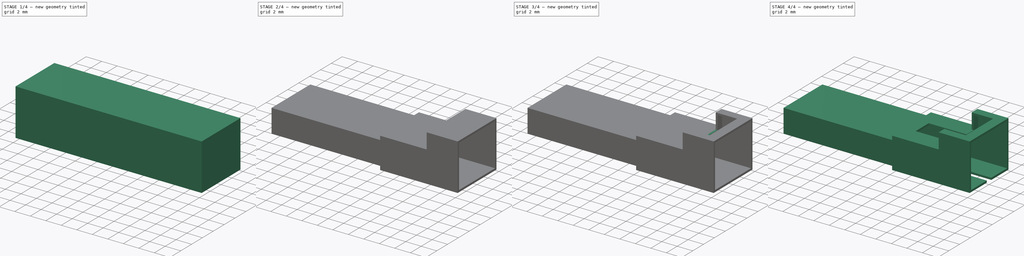
[diagram: build sequence overview — one tinted view per stage of 4, left to right]
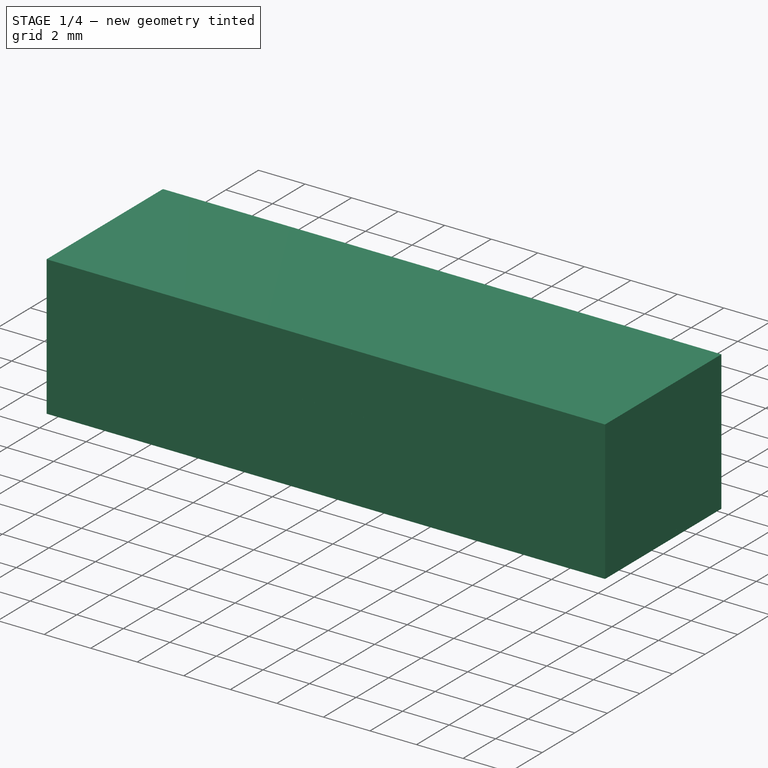
[diagram: stage 1 of 4 — iso view after this stage's code; geometry added in this stage tinted green]
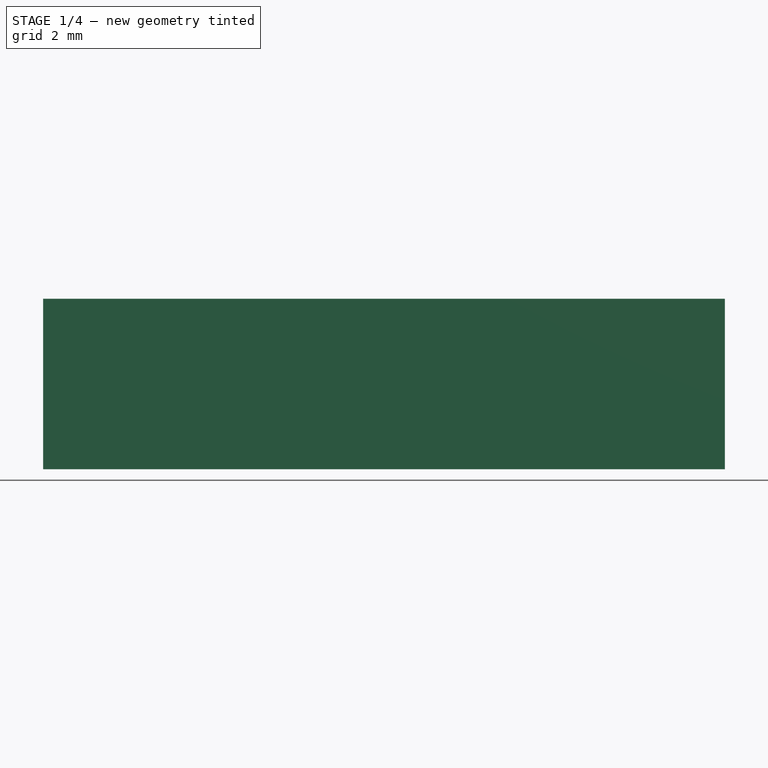
[diagram: stage 1 of 4 — front view after this stage's code; geometry added in this stage tinted green]
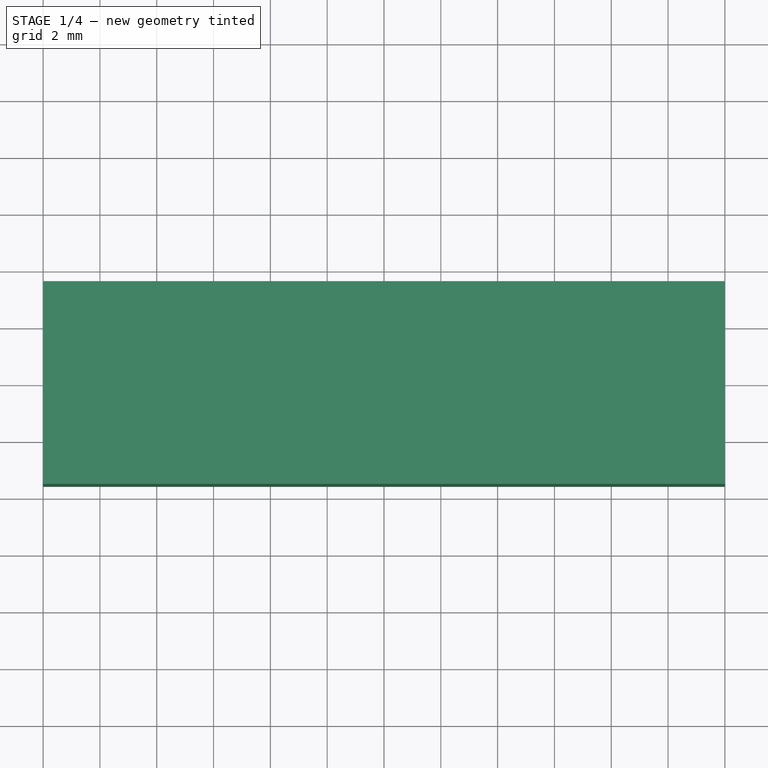
[diagram: stage 1 of 4 — top view after this stage's code; geometry added in this stage tinted green]
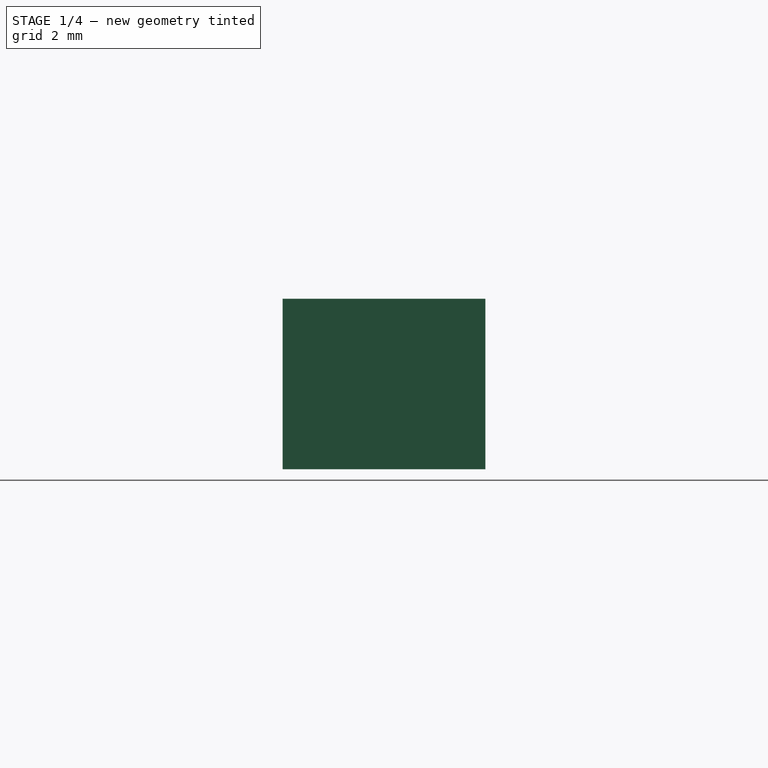
[diagram: stage 1 of 4 — right view after this stage's code; geometry added in this stage tinted green]
FCSTD DOCUMENT  (FreeCAD 0.17R13662 (Git))
Label: molex_2pos_male
License: All rights reserved
LicenseURL: http://en.wikipedia.org/wiki/All_rights_reserved
objects: Sketcher::SketchObject×9, PartDesign::Pocket×7, PartDesign::Pad×2, PartDesign::Body×2, PartDesign::Thickness×1, Part::Feature×1, PartDesign::FeatureBase×1
note: 32 computed .brp shape members not serialized (recipe doc carries the construction recipe); baked Part::Feature solids carry a one-line shape summary decoded from their .brp

FEATURE [Sketcher::SketchObject] Sketch
  MapMode = 5
  Support = -> [XY_Plane]
  sketch-geometry (4):
    g0: LineSegment StartX=-12 StartY=3.57 StartZ=0 EndX=12 EndY=3.57 EndZ=0
    g1: LineSegment StartX=12 StartY=3.57 StartZ=0 EndX=12 EndY=-3.57 EndZ=0
    g2: LineSegment StartX=12 StartY=-3.57 StartZ=0 EndX=-12 EndY=-3.57 EndZ=0
    g3: LineSegment StartX=-12 StartY=-3.57 StartZ=0 EndX=-12 EndY=3.57 EndZ=0
  constraints (12):
    c: Coincident(g0,g1)
    c: Coincident(g1,g2)
    c: Coincident(g2,g3)
    c: Coincident(g3,g0)
    c: Horizontal(g0)
    c: Horizontal(g2)
    c: Vertical(g1)
    c: Vertical(g3)
    c: Symmetric(g0,g2,g-1)
    c: Symmetric(g0,g0,g-2)
    c: Distance(g1) = 7.14
    c: Distance(g0) = 24
FEATURE [PartDesign::Pad] Pad
  Length = 6
  Length2 = 100
  Profile = -> Sketch
  Type = 0
FEATURE [PartDesign::Body] Body
  Group = -> [Sketch,Pad,Sketch001,Pocket,Sketch002,Pocket001,Thickness,Sketch003,Pocket002,Sketch004,Pocket003,Sketch005,Pocket004,Sketch006,Pocket005,Sketch007,Pad001]
  Origin = -> Origin
  Tip = -> Pad001
FEATURE [Part::Feature] Pad001001  label="Pad002"
  shape: bbox 24 x 7.142 x 6.002 mm, 50 faces (baked)
FEATURE [PartDesign::FeatureBase] BaseFeature
  BaseFeature = -> Pad001001
FEATURE [Sketcher::SketchObject] Sketch008
  MapMode = 5
  Placement = pos=(0,0,3.5) rot=(0,0,1;0rad)
  Support = -> [BaseFeature]
  sketch-geometry (16):
    g0: LineSegment StartX=-11.212 StartY=1.58188 StartZ=0 EndX=-9.9706 EndY=1.58188 EndZ=0
    g1: LineSegment StartX=-9.9706 StartY=1.58188 StartZ=0 EndX=-9.9706 EndY=0.792042 EndZ=0
    g2: LineSegment StartX=-9.9706 StartY=0.792042 StartZ=0 EndX=-11.212 EndY=0.792042 EndZ=0
    g3: LineSegment StartX=-11.212 StartY=0.792042 StartZ=0 EndX=-11.212 EndY=1.58188 EndZ=0
    g4: LineSegment StartX=-4.32571 StartY=1.58188 StartZ=0 EndX=-3.08434 EndY=1.58188 EndZ=0
    g5: LineSegment StartX=-3.08434 StartY=1.58188 StartZ=0 EndX=-3.08434 EndY=0.792042 EndZ=0
    g6: LineSegment StartX=-3.08434 StartY=0.792042 StartZ=0 EndX=-4.32571 EndY=0.792042 EndZ=0
    g7: LineSegment StartX=-4.32571 StartY=0.792042 StartZ=0 EndX=-4.32571 EndY=1.58188 EndZ=0
    g8: LineSegment StartX=-11.212 StartY=-1.58188 StartZ=0 EndX=-9.9706 EndY=-1.58188 EndZ=0
    g9: LineSegment StartX=-9.9706 StartY=-1.58188 StartZ=0 EndX=-9.9706 EndY=-0.792042 EndZ=0
    g10: LineSegment StartX=-9.9706 StartY=-0.792042 StartZ=0 EndX=-11.212 EndY=-0.792042 EndZ=0
    g11: LineSegment StartX=-11.212 StartY=-0.792042 StartZ=0 EndX=-11.212 EndY=-1.58188 EndZ=0
    g12: LineSegment StartX=-4.32571 StartY=-1.58188 StartZ=0 EndX=-3.08434 EndY=-1.58188 EndZ=0
    g13: LineSegment StartX=-3.08434 StartY=-1.58188 StartZ=0 EndX=-3.08434 EndY=-0.792042 EndZ=0
    g14: LineSegment StartX=-3.08434 StartY=-0.792042 StartZ=0 EndX=-4.32571 EndY=-0.792042 EndZ=0
    g15: LineSegment StartX=-4.32571 StartY=-0.792042 StartZ=0 EndX=-4.32571 EndY=-1.58188 EndZ=0
  constraints (37):
    c: Coincident(g0,g1)
    c: Coincident(g1,g2)
    c: Coincident(g2,g3)
    c: Coincident(g3,g0)
    c: Horizontal(g0)
    c: Horizontal(g2)
    c: Vertical(g1)
    c: Vertical(g3)
    c: Coincident(g4,g5)
    c: Coincident(g5,g6)
    c: Coincident(g6,g7)
    c: Coincident(g7,g4)
    c: Horizontal(g4)
    c: Horizontal(g6)
    c: Vertical(g5)
    c: Vertical(g7)
    c: DistanceY(g6,g1) = 0
    c: Equal(g7,g1)
    c: Equal(g4,g0)
    c: Coincident(g8,g9)
    c: Coincident(g9,g10)
    c: Coincident(g10,g11)
    c: Coincident(g11,g8)
    c: Horizontal(g8)
    c: Horizontal(g10)
    c: Vertical(g9)
    c: Vertical(g11)
    c: Coincident(g12,g13)
    c: Coincident(g13,g14)
    c: Coincident(g14,g15)
    c: Coincident(g15,g12)
    c: Horizontal(g12)
    c: Horizontal(g14)
    c: Vertical(g13)
    c: Vertical(g15)
    c: Equal(g15,g9)
    c: Equal(g12,g8)
FEATURE [PartDesign::Pocket] Pocket006
  BaseFeature = -> BaseFeature
  Length = 1
  Length2 = 100
  Profile = -> Sketch008
  Type = 0
FEATURE [PartDesign::Body] Body001
  BaseFeature = -> Pad001001
  Group = -> [BaseFeature,Sketch008,Pocket006]
  Origin = -> Origin001
  Tip = -> Pocket006
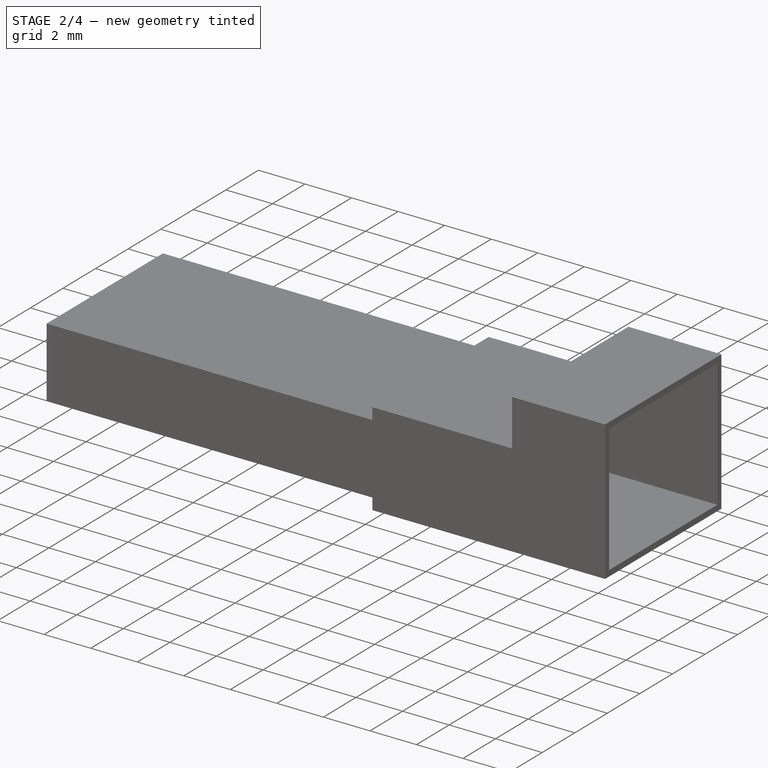
[diagram: stage 2 of 4 — iso view after this stage's code; geometry added in this stage tinted green]
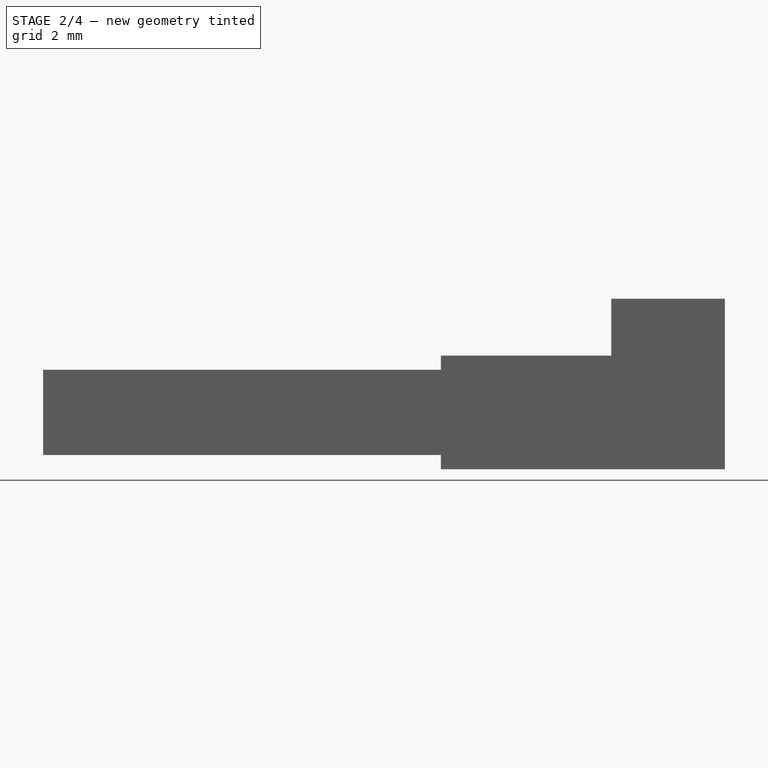
[diagram: stage 2 of 4 — front view after this stage's code; geometry added in this stage tinted green]
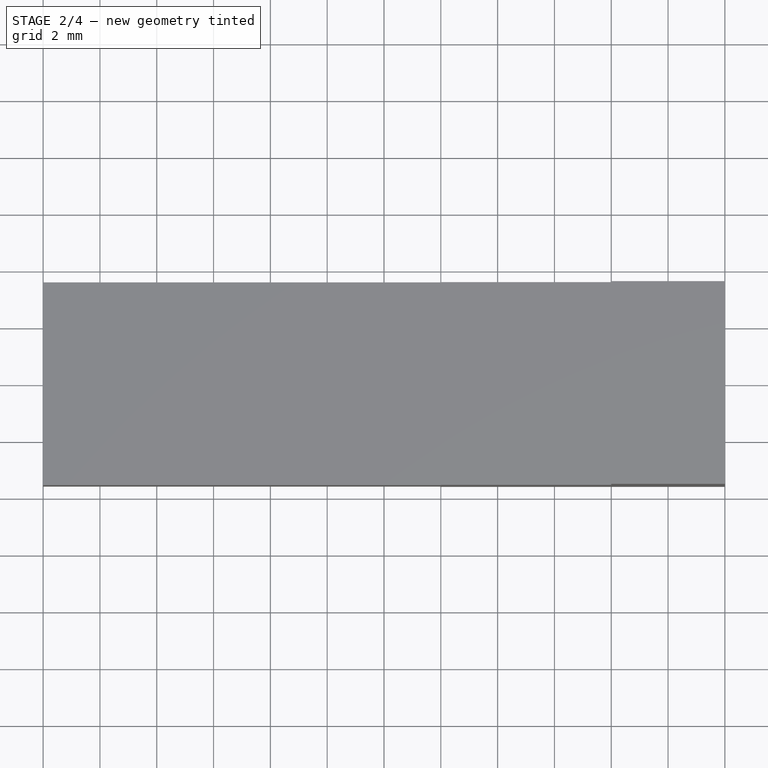
[diagram: stage 2 of 4 — top view after this stage's code; geometry added in this stage tinted green]
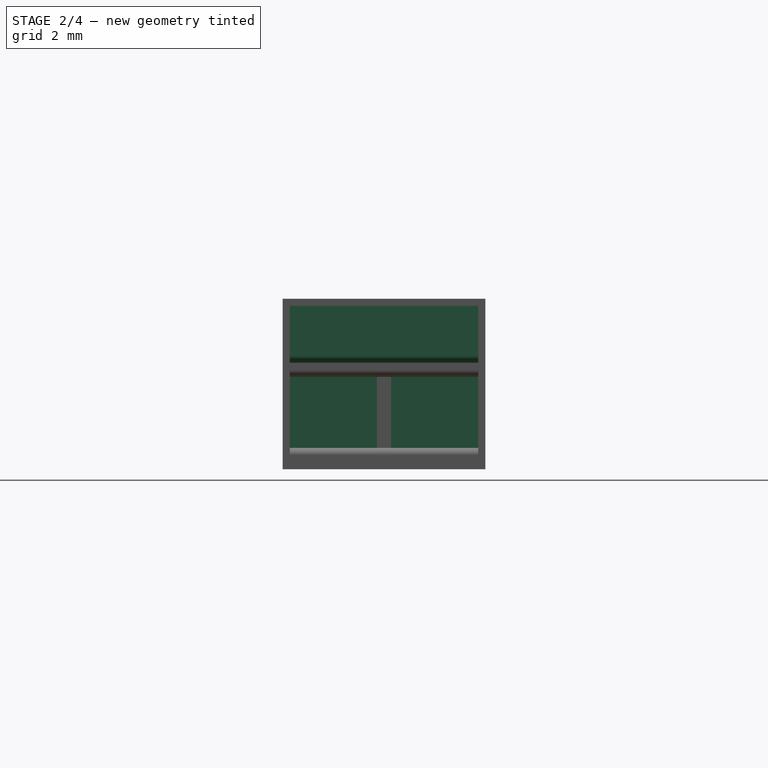
[diagram: stage 2 of 4 — right view after this stage's code; geometry added in this stage tinted green]
FEATURE [Sketcher::SketchObject] Sketch001
  ExternalGeometry = -> [Pad]
  MapMode = 5
  Placement = pos=(0,-3.57,0) rot=(1,0,0;1.5708rad)
  Support = -> [Pad]
  sketch-geometry (8):
    g0: LineSegment StartX=2 StartY=9.31964 StartZ=0 EndX=-13.1477 EndY=9.31964 EndZ=0
    g1: LineSegment StartX=-13.1477 StartY=9.31964 StartZ=0 EndX=-13.1477 EndY=3.5 EndZ=0
    g2: LineSegment StartX=-13.1477 StartY=3.5 StartZ=0 EndX=2 EndY=3.5 EndZ=0
    g3: LineSegment StartX=2 StartY=3.5 StartZ=0 EndX=2 EndY=9.31964 EndZ=0
    g4: LineSegment StartX=-12.5605 StartY=0.5 StartZ=0 EndX=2 EndY=0.5 EndZ=0
    g5: LineSegment StartX=2 StartY=0.5 StartZ=0 EndX=2 EndY=-3.17796 EndZ=0
    g6: LineSegment StartX=2 StartY=-3.17796 StartZ=0 EndX=-12.5605 EndY=-3.17796 EndZ=0
    g7: LineSegment StartX=-12.5605 StartY=-3.17796 StartZ=0 EndX=-12.5605 EndY=0.5 EndZ=0
  constraints (20):
    c: Coincident(g0,g1)
    c: Coincident(g1,g2)
    c: Coincident(g2,g3)
    c: Coincident(g3,g0)
    c: Horizontal(g0)
    c: Horizontal(g2)
    c: Vertical(g1)
    c: Vertical(g3)
    c: Coincident(g4,g5)
    c: Coincident(g5,g6)
    c: Coincident(g6,g7)
    c: Coincident(g7,g4)
    c: Horizontal(g4)
    c: Horizontal(g6)
    c: Vertical(g5)
    c: Vertical(g7)
    c: DistanceX(g4,g2) = 0
    c: DistanceY(g-1,g4) = 0.5
    c: DistanceY(g1,g-3) = 2.5
    c: DistanceX(g2,g-3) = 10
FEATURE [PartDesign::Pocket] Pocket
  BaseFeature = -> Pad
  Length = 5
  Length2 = 100
  Profile = -> Sketch001
  Type = 1
FEATURE [Sketcher::SketchObject] Sketch002
  ExternalGeometry = -> [Pocket]
  MapMode = 5
  Placement = pos=(0,-3.57,0) rot=(1,0,0;1.5708rad)
  Support = -> [Pocket]
  sketch-geometry (4):
    g0: LineSegment StartX=1.27912 StartY=4 StartZ=0 EndX=8 EndY=4 EndZ=0
    g1: LineSegment StartX=8 StartY=4 StartZ=0 EndX=8 EndY=8.56475 EndZ=0
    g2: LineSegment StartX=8 StartY=8.56475 StartZ=0 EndX=1.27912 EndY=8.56475 EndZ=0
    g3: LineSegment StartX=1.27912 StartY=8.56475 StartZ=0 EndX=1.27912 EndY=4 EndZ=0
  constraints (10):
    c: Coincident(g0,g1)
    c: Coincident(g1,g2)
    c: Coincident(g2,g3)
    c: Coincident(g3,g0)
    c: Horizontal(g0)
    c: Horizontal(g2)
    c: Vertical(g1)
    c: Vertical(g3)
    c: DistanceY(g-3,g0) = 0.5
    c: DistanceX(g1,g-4) = 4
FEATURE [PartDesign::Pocket] Pocket001
  BaseFeature = -> Pocket
  Length = 5
  Length2 = 100
  Profile = -> Sketch002
  Type = 1
FEATURE [PartDesign::Thickness] Thickness
  Base = -> Pocket001 [Face4]
  BaseFeature = -> Pocket001
  Join = 0
  Mode = 0
  Reversed = true
  Value = 0.25
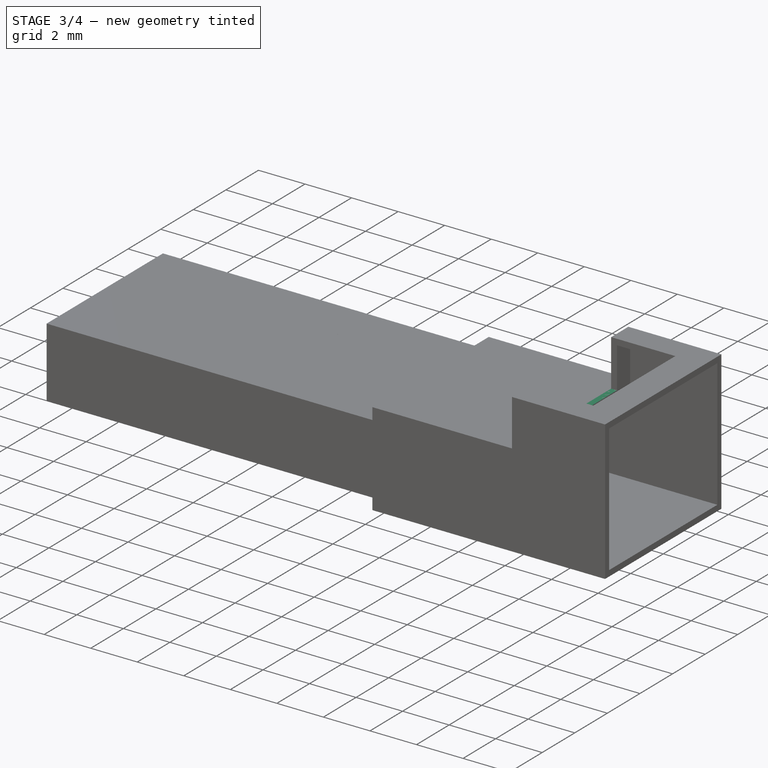
[diagram: stage 3 of 4 — iso view after this stage's code; geometry added in this stage tinted green]
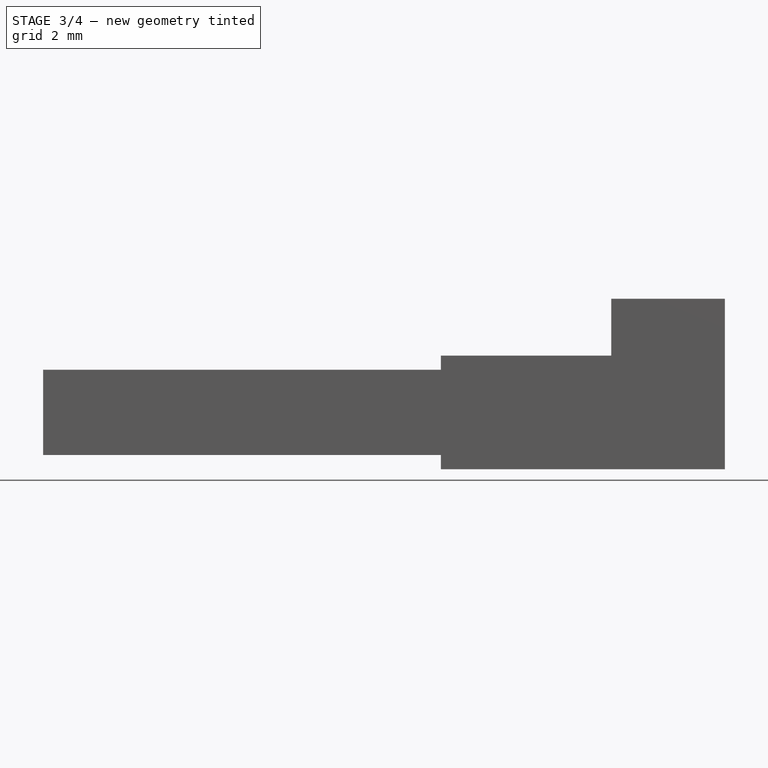
[diagram: stage 3 of 4 — front view after this stage's code; geometry added in this stage tinted green]
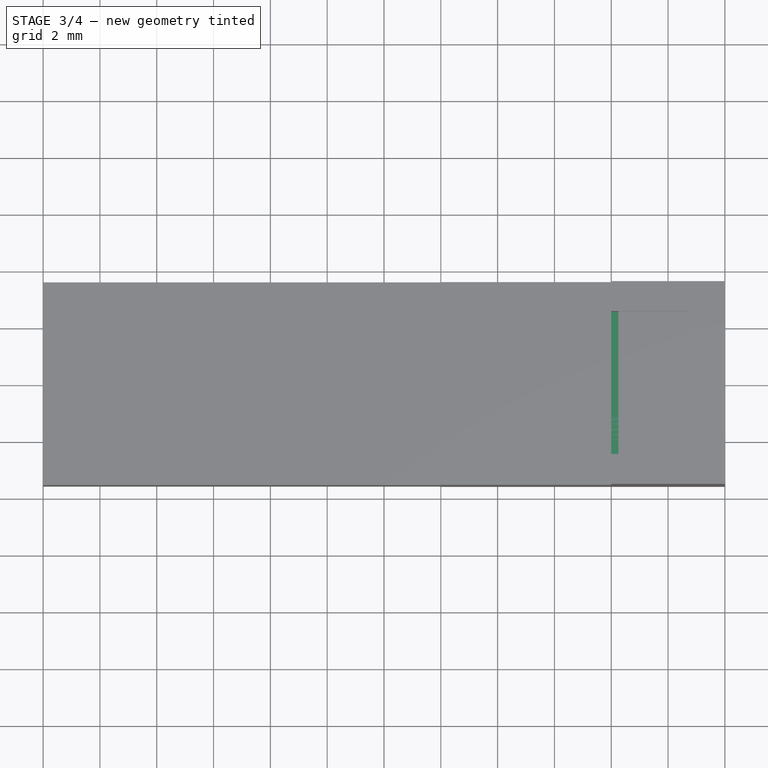
[diagram: stage 3 of 4 — top view after this stage's code; geometry added in this stage tinted green]
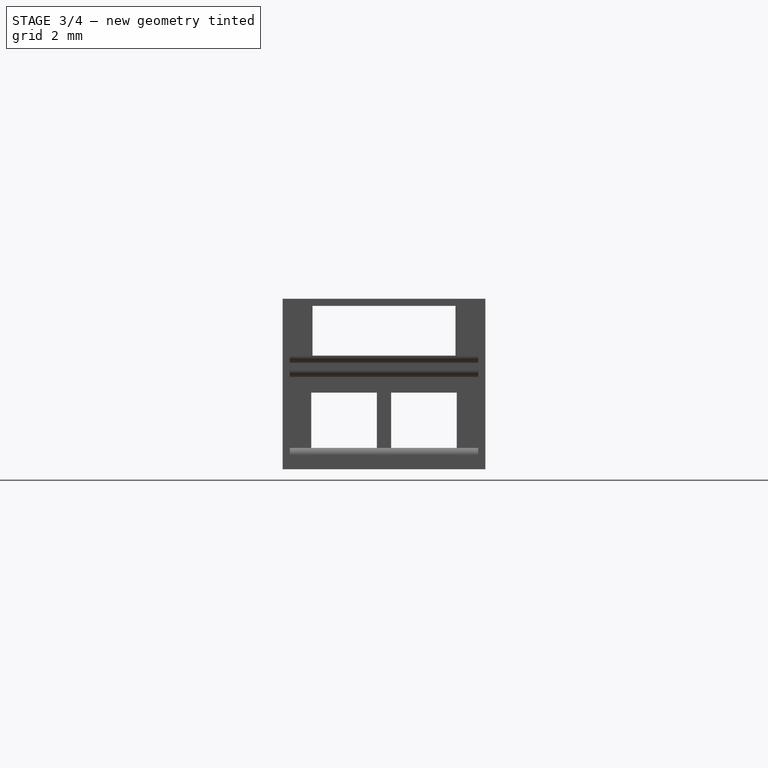
[diagram: stage 3 of 4 — right view after this stage's code; geometry added in this stage tinted green]
FEATURE [Sketcher::SketchObject] Sketch003
  ExternalGeometry = -> [Thickness]
  MapMode = 5
  Placement = pos=(-12,0,0) rot=(0.57735,-0.57735,-0.57735;2.0944rad)
  Support = -> [Thickness]
  sketch-geometry (4):
    g0: LineSegment StartX=-2.55954 StartY=2.69492 StartZ=0 EndX=2.55954 EndY=2.69492 EndZ=0
    g1: LineSegment StartX=2.55954 StartY=2.69492 StartZ=0 EndX=2.55954 EndY=-3.89112 EndZ=0
    g2: LineSegment StartX=2.55954 StartY=-3.89112 StartZ=0 EndX=-2.55954 EndY=-3.89112 EndZ=0
    g3: LineSegment StartX=-2.55954 StartY=-3.89112 StartZ=0 EndX=-2.55954 EndY=2.69492 EndZ=0
  constraints (9):
    c: Coincident(g0,g1)
    c: Coincident(g1,g2)
    c: Coincident(g2,g3)
    c: Coincident(g3,g0)
    c: Horizontal(g0)
    c: Horizontal(g2)
    c: Vertical(g1)
    c: Vertical(g3)
    c: Symmetric(g0,g0,g-2)
FEATURE [PartDesign::Pocket] Pocket002
  BaseFeature = -> Thickness
  Length = 1
  Length2 = 100
  Profile = -> Sketch003
  Type = 0
FEATURE [Sketcher::SketchObject] Sketch004
  MapMode = 5
  Placement = pos=(0,0,6) rot=(0,0,1;0rad)
  Support = -> [Pocket002]
  sketch-geometry (4):
    g0: LineSegment StartX=5.89233 StartY=2.5163 StartZ=0 EndX=10.7572 EndY=2.5163 EndZ=0
    g1: LineSegment StartX=10.7572 StartY=2.5163 StartZ=0 EndX=10.7572 EndY=-2.5163 EndZ=0
    g2: LineSegment StartX=10.7572 StartY=-2.5163 StartZ=0 EndX=5.89233 EndY=-2.5163 EndZ=0
    g3: LineSegment StartX=5.89233 StartY=-2.5163 StartZ=0 EndX=5.89233 EndY=2.5163 EndZ=0
  constraints (9):
    c: Coincident(g0,g1)
    c: Coincident(g1,g2)
    c: Coincident(g2,g3)
    c: Coincident(g3,g0)
    c: Horizontal(g0)
    c: Horizontal(g2)
    c: Vertical(g1)
    c: Vertical(g3)
    c: Symmetric(g1,g0,g-1)
FEATURE [PartDesign::Pocket] Pocket003
  BaseFeature = -> Pocket002
  Length = 2
  Length2 = 100
  Profile = -> Sketch004
  Type = 0
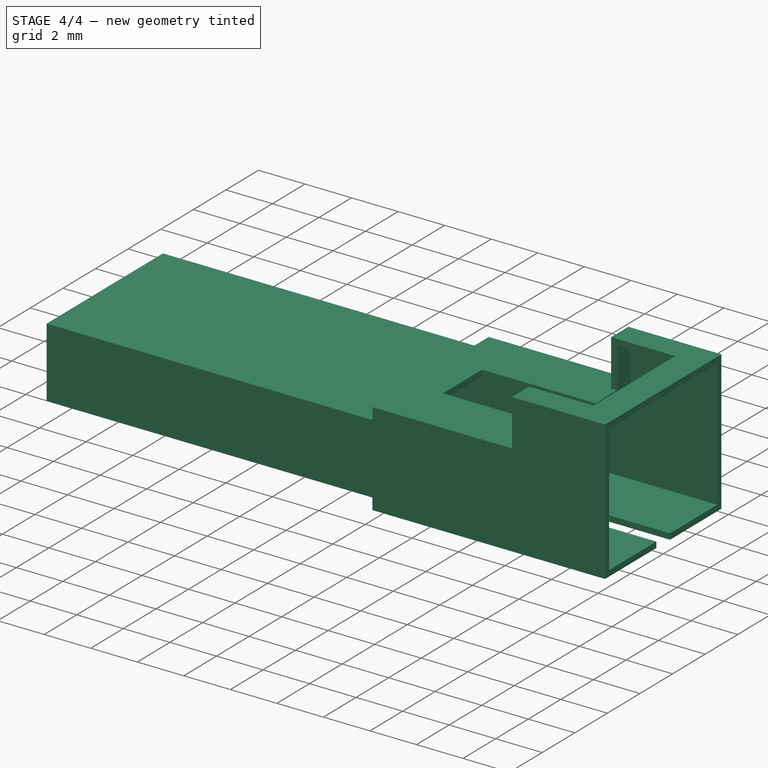
[diagram: stage 4 of 4 — iso view after this stage's code; geometry added in this stage tinted green]
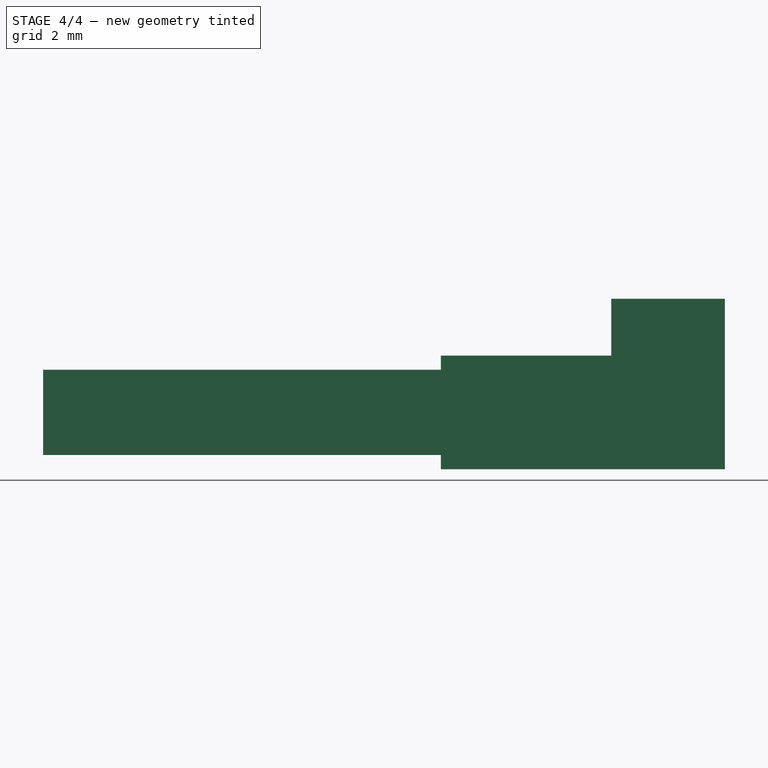
[diagram: stage 4 of 4 — front view after this stage's code; geometry added in this stage tinted green]
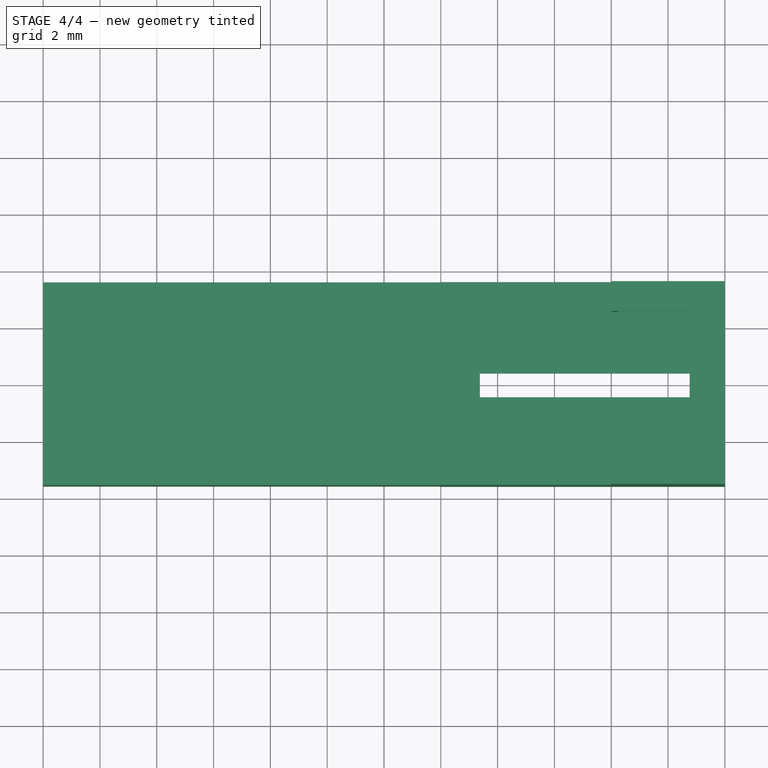
[diagram: stage 4 of 4 — top view after this stage's code; geometry added in this stage tinted green]
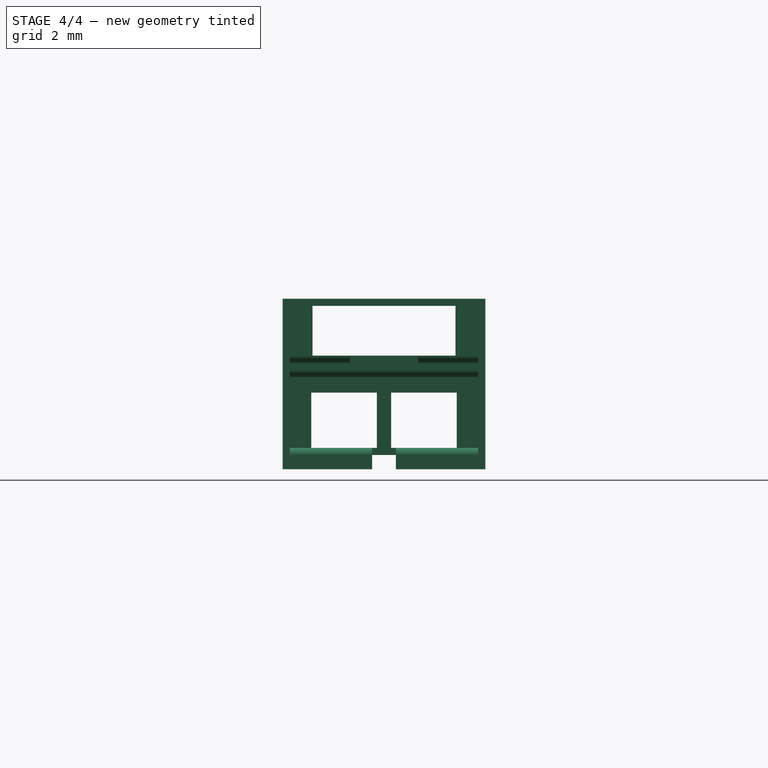
[diagram: stage 4 of 4 — right view after this stage's code; geometry added in this stage tinted green]
FEATURE [Sketcher::SketchObject] Sketch005
  MapMode = 5
  Placement = pos=(0,0,4) rot=(0,0,1;0rad)
  Support = -> [Pocket003]
  sketch-geometry (4):
    g0: LineSegment StartX=3.37603 StartY=1.20304 StartZ=0 EndX=8.91188 EndY=1.20304 EndZ=0
    g1: LineSegment StartX=8.91188 StartY=1.20304 StartZ=0 EndX=8.91188 EndY=-1.20304 EndZ=0
    g2: LineSegment StartX=8.91188 StartY=-1.20304 StartZ=0 EndX=3.37603 EndY=-1.20304 EndZ=0
    g3: LineSegment StartX=3.37603 StartY=-1.20304 StartZ=0 EndX=3.37603 EndY=1.20304 EndZ=0
  constraints (9):
    c: Coincident(g0,g1)
    c: Coincident(g1,g2)
    c: Coincident(g2,g3)
    c: Coincident(g3,g0)
    c: Horizontal(g0)
    c: Horizontal(g2)
    c: Vertical(g1)
    c: Vertical(g3)
    c: Symmetric(g0,g1,g-1)
FEATURE [PartDesign::Pocket] Pocket004
  BaseFeature = -> Pocket003
  Length = 1
  Length2 = 100
  Profile = -> Sketch005
  Type = 0
FEATURE [Sketcher::SketchObject] Sketch006
  MapMode = 5
  Placement = pos=(0,0,0) rot=(1,0,0;3.14159rad)
  Support = -> [Pocket004]
  sketch-geometry (4):
    g0: LineSegment StartX=1.95013 StartY=0.419385 StartZ=0 EndX=13.0638 EndY=0.419385 EndZ=0
    g1: LineSegment StartX=13.0638 StartY=0.419385 StartZ=0 EndX=13.0638 EndY=-0.419385 EndZ=0
    g2: LineSegment StartX=13.0638 StartY=-0.419385 StartZ=0 EndX=1.95013 EndY=-0.419385 EndZ=0
    g3: LineSegment StartX=1.95013 StartY=-0.419385 StartZ=0 EndX=1.95013 EndY=0.419385 EndZ=0
  constraints (9):
    c: Coincident(g0,g1)
    c: Coincident(g1,g2)
    c: Coincident(g2,g3)
    c: Coincident(g3,g0)
    c: Horizontal(g0)
    c: Horizontal(g2)
    c: Vertical(g1)
    c: Vertical(g3)
    c: Symmetric(g0,g2,g-1)
FEATURE [PartDesign::Pocket] Pocket005
  BaseFeature = -> Pocket004
  Length = 1
  Length2 = 100
  Profile = -> Sketch006
  Type = 0
FEATURE [Sketcher::SketchObject] Sketch007
  ExternalGeometry = -> [Pocket005]
  MapMode = 5
  Placement = pos=(0,0,0.75) rot=(0,0,1;0rad)
  Support = -> [Pocket005]
  sketch-geometry (4):
    g0: LineSegment StartX=-11 StartY=0.25 StartZ=0 EndX=0 EndY=0.25 EndZ=0
    g1: LineSegment StartX=0 StartY=0.25 StartZ=0 EndX=0 EndY=-0.25 EndZ=0
    g2: LineSegment StartX=0 StartY=-0.25 StartZ=0 EndX=-11 EndY=-0.25 EndZ=0
    g3: LineSegment StartX=-11 StartY=-0.25 StartZ=0 EndX=-11 EndY=0.25 EndZ=0
  constraints (12):
    c: Coincident(g0,g1)
    c: Coincident(g1,g2)
    c: Coincident(g2,g3)
    c: Coincident(g3,g0)
    c: Horizontal(g0)
    c: Horizontal(g2)
    c: Vertical(g1)
    c: Vertical(g3)
    c: PointOnObject(g1,g-2)
    c: Symmetric(g1,g0,g-1)
    c: PointOnObject(g0,g-3)
    c: Distance(g3) = 0.5
FEATURE [PartDesign::Pad] Pad001
  BaseFeature = -> Pocket005
  Length = 2.7
  Length2 = 100
  Profile = -> Sketch007
  Type = 0
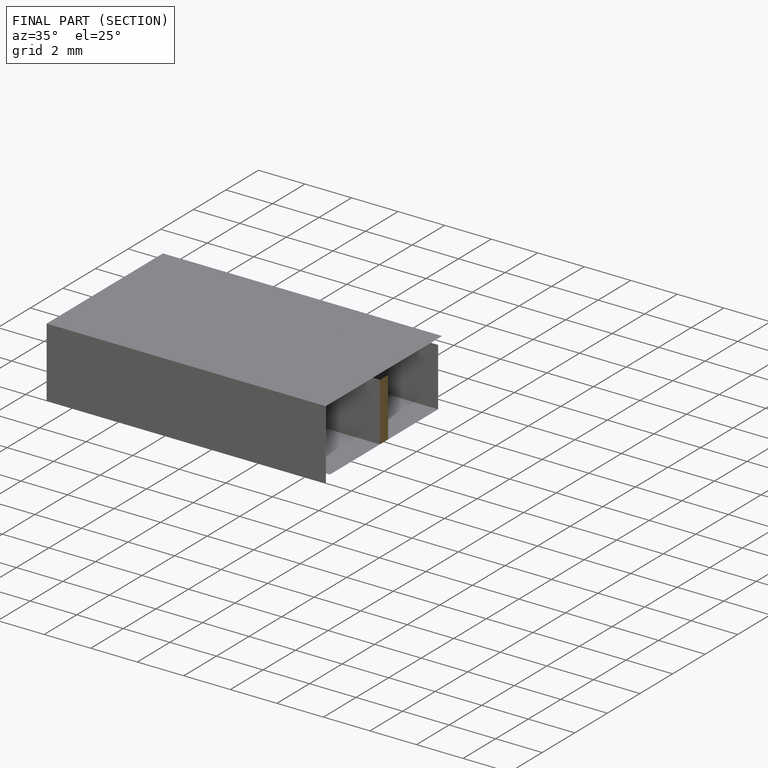
[diagram: finished part — half-section view (interior)]
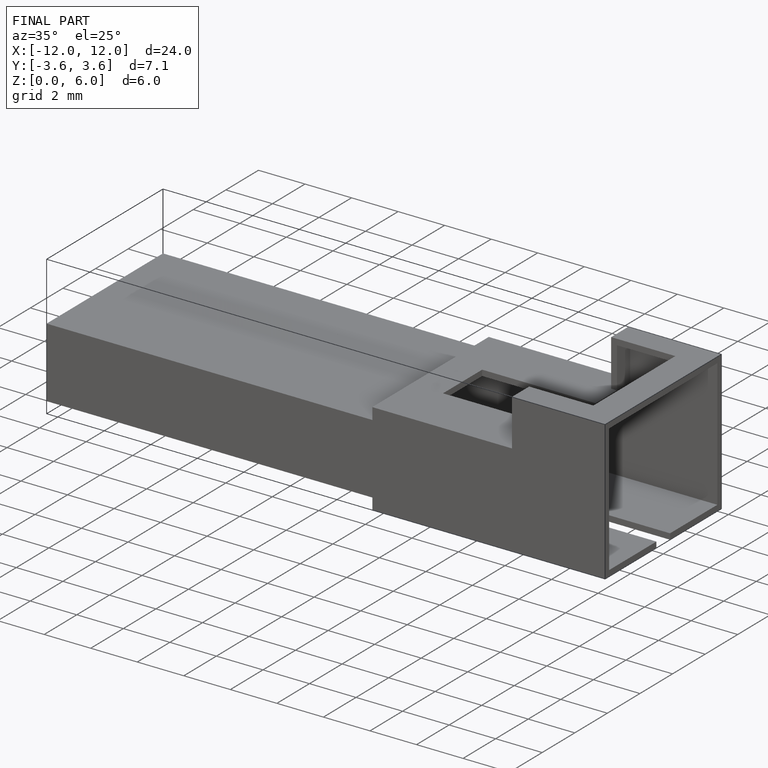
[diagram: finished part — iso view with bounding-box wireframe]
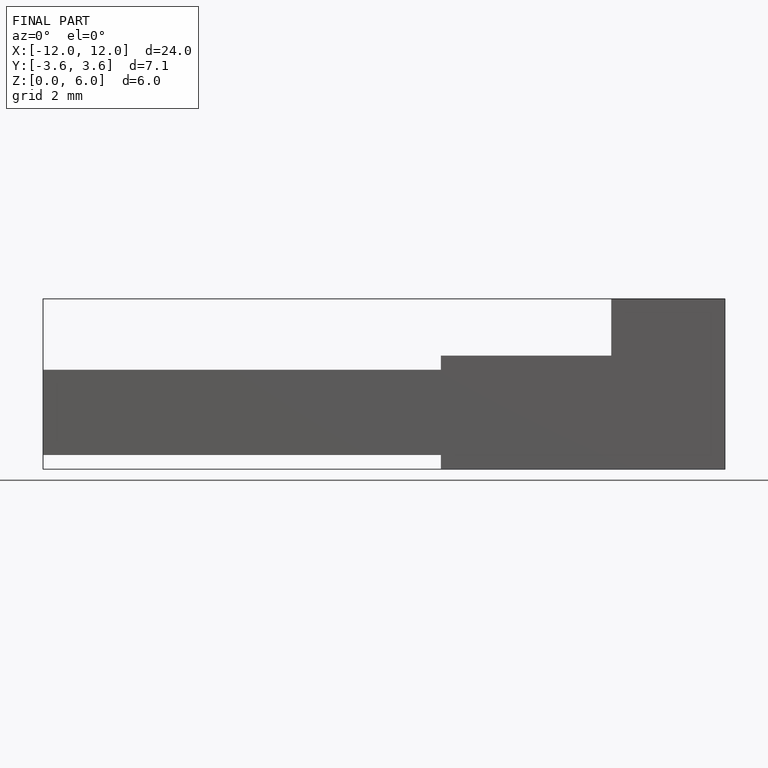
[diagram: finished part — front view with bounding-box wireframe]
